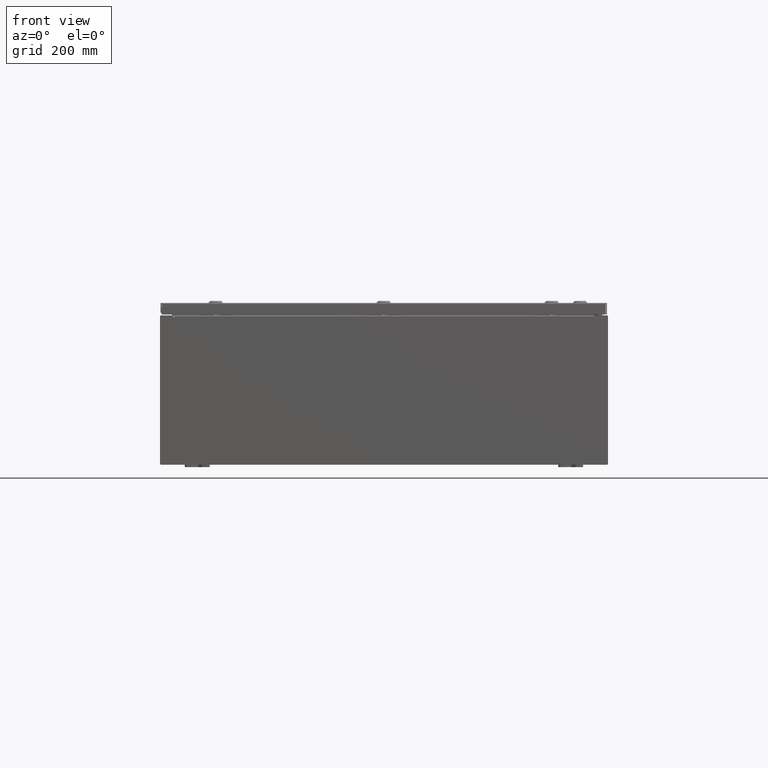
[diagram: clean part render]
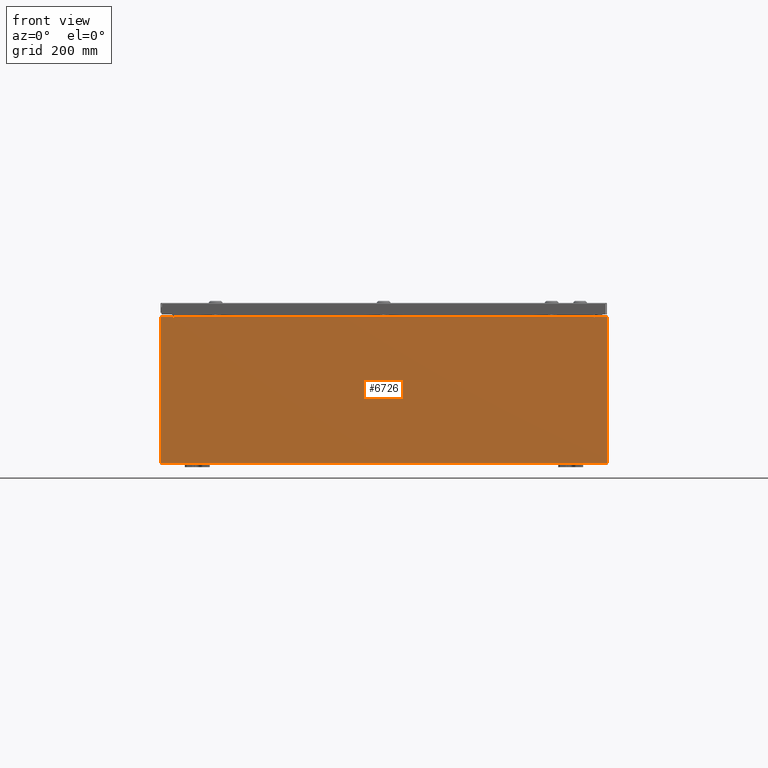
[diagram: same view with one face highlighted and labeled with its STEP entity id]
A machine part, front view. The second image highlights one B-rep face of the part: STEP entity #6726.
In plain terms, the highlighted planar face has unit normal (-0, 1, -0).
Its self-contained STEP definition (entity closure, byte-faithful):
#1237 = CIRCLE ( 'NONE', #22127, 0.01867499999999949400 ) ;
#2025 = EDGE_CURVE ( 'NONE', #67707, #38126, #61622, .T. ) ;
#2698 = DIRECTION ( 'NONE',  ( 1.000000000000000000, 0.0000000000000000000, 3.048036009064577000E-017 ) ) ;
#3480 = VERTEX_POINT ( 'NONE', #61795 ) ;
#3630 = VECTOR ( 'NONE', #31206, 39.37007874015748100 ) ;
#3909 = LINE ( 'NONE', #44906, #30391 ) ;
#5560 = VECTOR ( 'NONE', #27051, 39.37007874015748100 ) ;
#5633 = VECTOR ( 'NONE', #61250, 39.37007874015748100 ) ;
#6376 = AXIS2_PLACEMENT_3D ( 'NONE', #13114, #50244, #18429 ) ;
#6726 = ADVANCED_FACE ( 'NONE', ( #62976 ), #20219, .F. ) ;
#7863 = EDGE_CURVE ( 'NONE', #38701, #58840, #63700, .T. ) ;
#8879 = LINE ( 'NONE', #53571, #5560 ) ;
#9610 = CIRCLE ( 'NONE', #6376, 0.01867499999999949400 ) ;
#10649 = DIRECTION ( 'NONE',  ( -0.0000000000000000000, -0.0000000000000000000, 1.000000000000000000 ) ) ;
#10652 = EDGE_CURVE ( 'NONE', #67657, #61967, #9610, .T. ) ;
#11486 = ORIENTED_EDGE ( 'NONE', *, *, #25327, .T. ) ;
#12290 = EDGE_CURVE ( 'NONE', #40274, #13656, #16143, .T. ) ;
#13097 = EDGE_CURVE ( 'NONE', #61967, #13656, #45923, .T. ) ;
#13114 = CARTESIAN_POINT ( 'NONE',  ( -16.90587499999999100, 0.0000000000000000000, 5.874949999999999200 ) ) ;
#13266 = CARTESIAN_POINT ( 'NONE',  ( -16.88719999999999600, 3.756290991288361700E-016, 5.912299999999999200 ) ) ;
#13656 = VERTEX_POINT ( 'NONE', #41110 ) ;
#14732 = EDGE_CURVE ( 'NONE', #58840, #40274, #67687, .T. ) ;
#15122 = EDGE_CURVE ( 'NONE', #3480, #66265, #1237, .T. ) ;
#15616 = ORIENTED_EDGE ( 'NONE', *, *, #37606, .F. ) ;
#16143 = LINE ( 'NONE', #34396, #42646 ) ;
#16924 = CARTESIAN_POINT ( 'NONE',  ( 16.92455000000000400, 0.0000000000000000000, 5.925300000000000000 ) ) ;
#18129 = ORIENTED_EDGE ( 'NONE', *, *, #14732, .T. ) ;
#18349 = CARTESIAN_POINT ( 'NONE',  ( -17.92529999999999600, 0.0000000000000000000, -5.925300000000000000 ) ) ;
#18429 = DIRECTION ( 'NONE',  ( 0.0000000000000000000, 0.0000000000000000000, -1.000000000000000000 ) ) ;
#19753 = EDGE_CURVE ( 'NONE', #62916, #38701, #20766, .T. ) ;
#20219 = PLANE ( 'NONE',  #37299 ) ;
#20344 = CARTESIAN_POINT ( 'NONE',  ( -16.88719999999998900, -0.0000000000000000000, 5.874949999999999200 ) ) ;
#20720 = VECTOR ( 'NONE', #61308, 39.37007874015748100 ) ;
#20766 = LINE ( 'NONE', #60519, #61494 ) ;
#21305 = VECTOR ( 'NONE', #32844, 39.37007874015748100 ) ;
#21725 = CARTESIAN_POINT ( 'NONE',  ( 16.88720000000000000, 0.0000000000000000000, 5.874949999999999200 ) ) ;
#21860 = ORIENTED_EDGE ( 'NONE', *, *, #2025, .T. ) ;
#22127 = AXIS2_PLACEMENT_3D ( 'NONE', #60866, #29001, #66213 ) ;
#23602 = ORIENTED_EDGE ( 'NONE', *, *, #13097, .F. ) ;
#25254 = VECTOR ( 'NONE', #10649, 39.37007874015748100 ) ;
#25327 = EDGE_CURVE ( 'NONE', #49927, #62916, #3909, .T. ) ;
#25564 = DIRECTION ( 'NONE',  ( 0.0000000000000000000, -0.0000000000000000000, -1.000000000000000000 ) ) ;
#27051 = DIRECTION ( 'NONE',  ( -8.681145560799821800E-014, 0.0000000000000000000, -1.000000000000000000 ) ) ;
#29001 = DIRECTION ( 'NONE',  ( -0.0000000000000000000, 1.000000000000000000, -0.0000000000000000000 ) ) ;
#29376 = ORIENTED_EDGE ( 'NONE', *, *, #60556, .F. ) ;
#30391 = VECTOR ( 'NONE', #60992, 39.37007874015748100 ) ;
#31206 = DIRECTION ( 'NONE',  ( 0.0000000000000000000, 0.0000000000000000000, 1.000000000000000000 ) ) ;
#31772 = CARTESIAN_POINT ( 'NONE',  ( 17.92530000000000400, 0.0000000000000000000, -5.925300000000000000 ) ) ;
#32672 = CARTESIAN_POINT ( 'NONE',  ( 17.92530000000000400, 0.0000000000000000000, 5.925300000000000000 ) ) ;
#32844 = DIRECTION ( 'NONE',  ( -1.000000000000000000, -0.0000000000000000000, -0.0000000000000000000 ) ) ;
#33969 = DIRECTION ( 'NONE',  ( 0.0000000000000000000, 0.0000000000000000000, -1.000000000000000000 ) ) ;
#34396 = CARTESIAN_POINT ( 'NONE',  ( -17.92529999999999600, 0.0000000000000000000, 5.925299999999999100 ) ) ;
#35335 = ORIENTED_EDGE ( 'NONE', *, *, #61489, .F. ) ;
#37299 = AXIS2_PLACEMENT_3D ( 'NONE', #46683, #57379, #25564 ) ;
#37606 = EDGE_CURVE ( 'NONE', #66265, #38126, #52330, .T. ) ;
#38126 = VERTEX_POINT ( 'NONE', #56527 ) ;
#38167 = CARTESIAN_POINT ( 'NONE',  ( -17.92529999999999600, 0.0000000000000000000, -5.925300000000000000 ) ) ;
#38701 = VERTEX_POINT ( 'NONE', #31772 ) ;
#40238 = ORIENTED_EDGE ( 'NONE', *, *, #7863, .T. ) ;
#40274 = VERTEX_POINT ( 'NONE', #66184 ) ;
#41070 = EDGE_LOOP ( 'NONE', ( #23602, #44143, #29376, #21860, #15616, #41975, #35335, #11486, #62476, #40238, #18129, #57983 ) ) ;
#41110 = CARTESIAN_POINT ( 'NONE',  ( -16.92454999999998900, 0.0000000000000000000, 5.925299999999999100 ) ) ;
#41975 = ORIENTED_EDGE ( 'NONE', *, *, #15122, .F. ) ;
#42365 = CARTESIAN_POINT ( 'NONE',  ( -17.92529999999999600, 0.0000000000000000000, 5.925299999999999100 ) ) ;
#42646 = VECTOR ( 'NONE', #2698, 39.37007874015748100 ) ;
#44143 = ORIENTED_EDGE ( 'NONE', *, *, #10652, .F. ) ;
#44906 = CARTESIAN_POINT ( 'NONE',  ( -17.92529999999999600, 0.0000000000000000000, 5.925299999999999100 ) ) ;
#45205 = CARTESIAN_POINT ( 'NONE',  ( 16.88720000000000000, 0.0000000000000000000, 0.0000000000000000000 ) ) ;
#45923 = LINE ( 'NONE', #68464, #3630 ) ;
#46683 = CARTESIAN_POINT ( 'NONE',  ( 0.0000000000000000000, 0.0000000000000000000, 0.0000000000000000000 ) ) ;
#47467 = VECTOR ( 'NONE', #61090, 39.37007874015748100 ) ;
#47920 = CARTESIAN_POINT ( 'NONE',  ( -16.92454999999998900, 0.0000000000000000000, 5.874949999999999200 ) ) ;
#47978 = LINE ( 'NONE', #66609, #5633 ) ;
#49927 = VERTEX_POINT ( 'NONE', #16924 ) ;
#50244 = DIRECTION ( 'NONE',  ( -0.0000000000000000000, 1.000000000000000000, -0.0000000000000000000 ) ) ;
#52330 = LINE ( 'NONE', #45205, #20720 ) ;
#53571 = CARTESIAN_POINT ( 'NONE',  ( 16.92454999999949200, -0.0000000000000000000, -1.469244821010302200E-012 ) ) ;
#56527 = CARTESIAN_POINT ( 'NONE',  ( 16.88720000000000000, 0.0000000000000000000, 5.912299999999999200 ) ) ;
#57379 = DIRECTION ( 'NONE',  ( 0.0000000000000000000, -1.000000000000000000, 0.0000000000000000000 ) ) ;
#57983 = ORIENTED_EDGE ( 'NONE', *, *, #12290, .T. ) ;
#58840 = VERTEX_POINT ( 'NONE', #18349 ) ;
#60519 = CARTESIAN_POINT ( 'NONE',  ( 17.92530000000000400, 0.0000000000000000000, 5.925300000000000000 ) ) ;
#60556 = EDGE_CURVE ( 'NONE', #67707, #67657, #47978, .T. ) ;
#60866 = CARTESIAN_POINT ( 'NONE',  ( 16.90587500000000200, 0.0000000000000000000, 5.874949999999999200 ) ) ;
#60992 = DIRECTION ( 'NONE',  ( 1.000000000000000000, 0.0000000000000000000, 3.048036009064577000E-017 ) ) ;
#61090 = DIRECTION ( 'NONE',  ( 1.000000000000000000, 0.0000000000000000000, 0.0000000000000000000 ) ) ;
#61250 = DIRECTION ( 'NONE',  ( 0.0000000000000000000, 0.0000000000000000000, -1.000000000000000000 ) ) ;
#61308 = DIRECTION ( 'NONE',  ( 0.0000000000000000000, 0.0000000000000000000, 1.000000000000000000 ) ) ;
#61489 = EDGE_CURVE ( 'NONE', #49927, #3480, #8879, .T. ) ;
#61494 = VECTOR ( 'NONE', #33969, 39.37007874015748100 ) ;
#61622 = LINE ( 'NONE', #13266, #47467 ) ;
#61795 = CARTESIAN_POINT ( 'NONE',  ( 16.92455000000000000, 0.0000000000000000000, 5.874949999999999200 ) ) ;
#61967 = VERTEX_POINT ( 'NONE', #47920 ) ;
#62476 = ORIENTED_EDGE ( 'NONE', *, *, #19753, .T. ) ;
#62916 = VERTEX_POINT ( 'NONE', #32672 ) ;
#62976 = FACE_OUTER_BOUND ( 'NONE', #41070, .T. ) ;
#63563 = CARTESIAN_POINT ( 'NONE',  ( -16.88719999999998900, 3.756290991288361700E-016, 5.912299999999999200 ) ) ;
#63700 = LINE ( 'NONE', #38167, #21305 ) ;
#66184 = CARTESIAN_POINT ( 'NONE',  ( -17.92529999999999600, 0.0000000000000000000, 5.925299999999999100 ) ) ;
#66213 = DIRECTION ( 'NONE',  ( 0.0000000000000000000, 0.0000000000000000000, -1.000000000000000000 ) ) ;
#66265 = VERTEX_POINT ( 'NONE', #21725 ) ;
#66609 = CARTESIAN_POINT ( 'NONE',  ( -16.88719999999998900, -0.0000000000000000000, 0.0000000000000000000 ) ) ;
#67657 = VERTEX_POINT ( 'NONE', #20344 ) ;
#67687 = LINE ( 'NONE', #42365, #25254 ) ;
#67707 = VERTEX_POINT ( 'NONE', #63563 ) ;
#68464 = CARTESIAN_POINT ( 'NONE',  ( -16.92454999999998900, -0.0000000000000000000, 0.0000000000000000000 ) ) ;